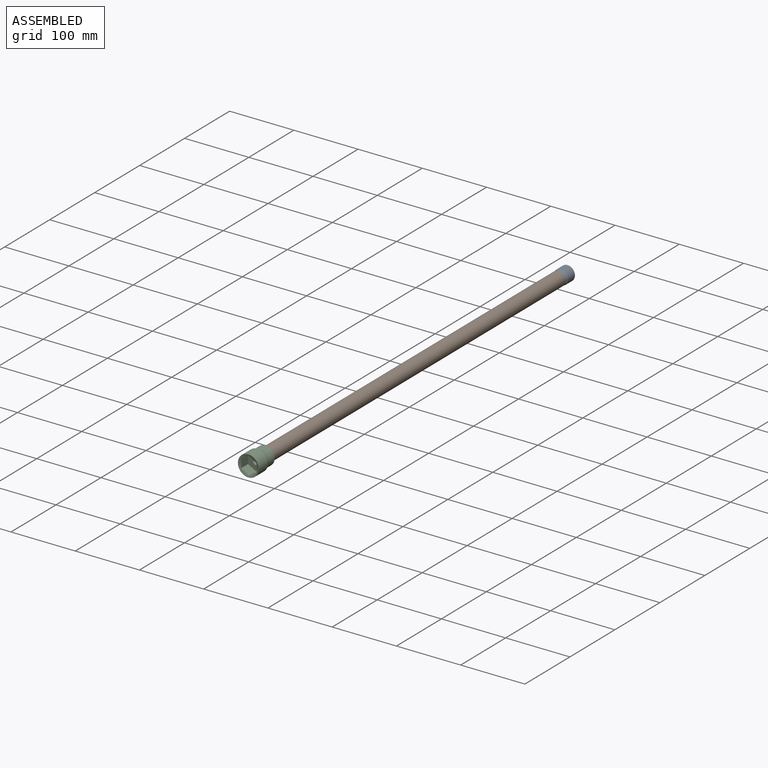
[diagram: assembled view]
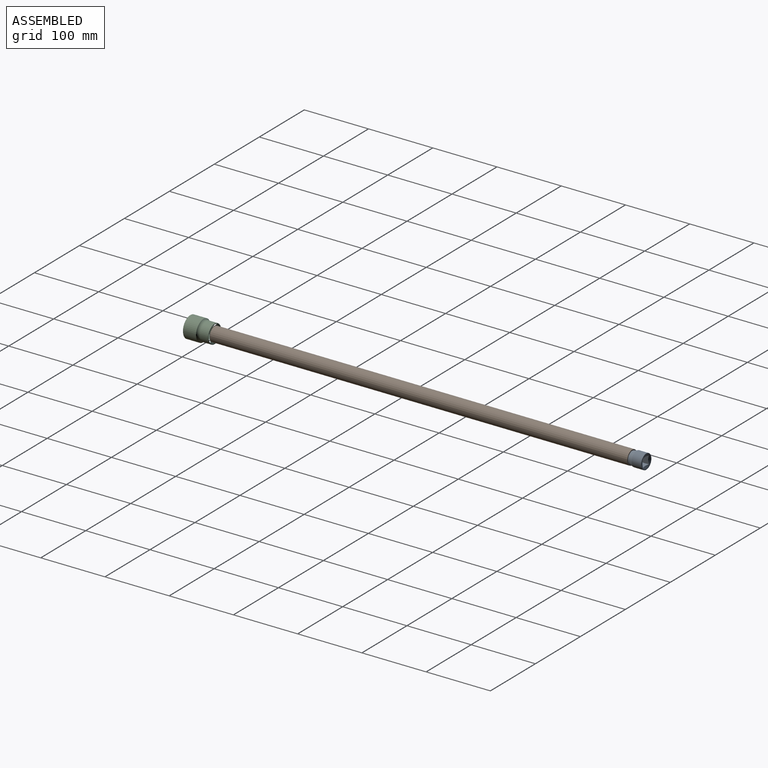
[diagram: assembled view, second angle]
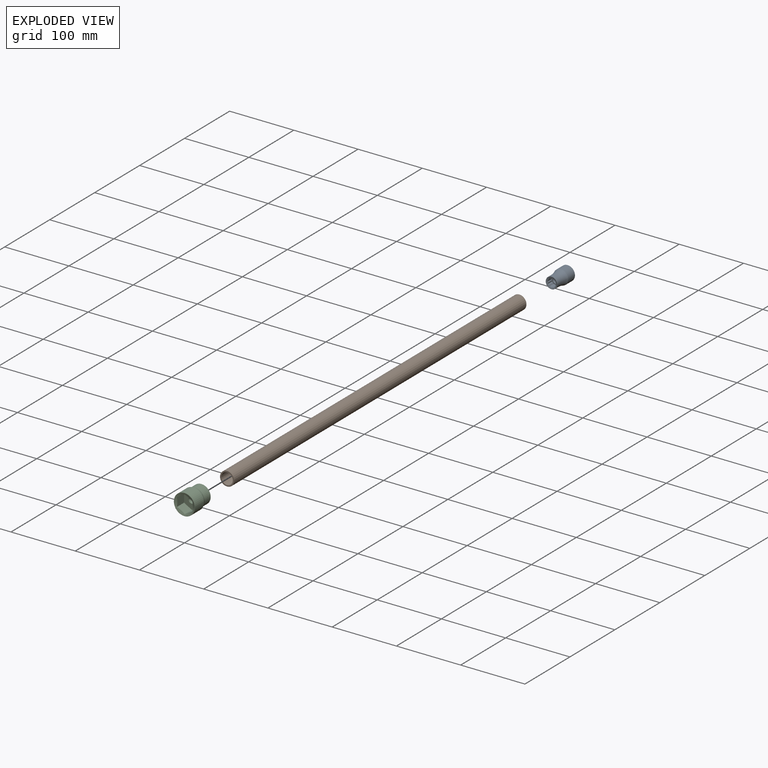
[diagram: exploded view]
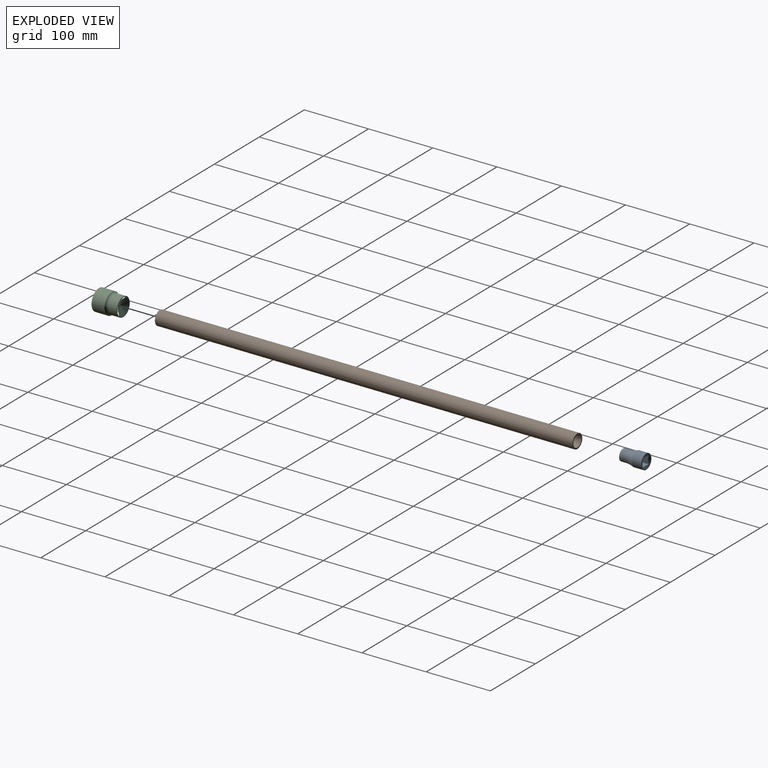
[diagram: exploded view, second angle]
ASSEMBLY  parts=3 mates=2
PART A: 38 faces, bbox 36.2x44.5x44.5 mm
  f0: plane 22.8x22.8mm, normal (1,0,0), area 68.5mm2, adj f30,f37
  f1: plane 13.89x12.7mm, normal (0,0,-1), area 168.5mm2, adj f2,f3,f34,f37
  f2: plane 13.89x12.7mm, normal (0,1,0), area 168.5mm2, adj f1,f4,f34,f37
  f3: plane 13.89x12.7mm, normal (0,-1,0), area 168.5mm2, adj f1,f4,f34,f37
  f4: plane 13.89x12.7mm, normal (0,0,1), area 168.5mm2, adj f2,f3,f34,f37
  f5: plane 17.8x17.8mm, normal (-1,0,0), area 27.2mm2, adj f32,f36
  f6: plane 9.12x1.76mm, normal (0,0.87,-0.5), area 16.4mm2, adj f17,f28,f33,f36
  f7: plane 9.12x1.76mm, normal (0,0.87,-0.5), area 16.4mm2, adj f9,f29,f33,f36
  f8: plane 9.12x1.76mm, normal (0,0.87,0.5), area 16.4mm2, adj f10,f27,f33,f36
  f9: plane 9.12x1.76mm, normal (0,0.87,0.5), area 16.4mm2, adj f7,f26,f33,f36
  f10: plane 9.12x2.01mm, normal (0,0,1), area 16.4mm2, adj f8,f25,f33,f36
  f11: plane 9.12x2.01mm, normal (0,0,1), area 16.4mm2, adj f12,f24,f33,f36
  f12: plane 9.12x1.76mm, normal (0,-0.87,0.5), area 16.4mm2, adj f11,f23,f33,f36
  f13: plane 9.12x1.76mm, normal (0,-0.87,0.5), area 16.4mm2, adj f14,f22,f33,f36
  f14: plane 9.12x1.76mm, normal (0,-0.87,-0.5), area 16.4mm2, adj f13,f21,f33,f36
  f15: plane 9.12x1.76mm, normal (0,-0.87,-0.5), area 16.4mm2, adj f16,f20,f33,f36
  f16: plane 9.12x2.01mm, normal (0,0,-1), area 16.4mm2, adj f15,f19,f33,f36
  f17: plane 9.12x2.01mm, normal (0,0,-1), area 16.4mm2, adj f6,f18,f33,f36
  f18: plane 9.12x1.76mm, normal (0,0.5,-0.87), area 16.4mm2, adj f17,f19,f33,f36
  f19: plane 9.12x1.76mm, normal (0,-0.5,-0.87), area 16.4mm2, adj f16,f18,f33,f36
  f20: plane 9.12x1.76mm, normal (0,-0.5,-0.87), area 16.4mm2, adj f15,f21,f33,f36
  f21: plane 9.12x2.01mm, normal (0,-1,0), area 16.4mm2, adj f14,f20,f33,f36
  f22: plane 9.12x2.01mm, normal (0,-1,0), area 16.4mm2, adj f13,f23,f33,f36
  f23: plane 9.12x1.76mm, normal (0,-0.5,0.87), area 16.4mm2, adj f12,f22,f33,f36
  f24: plane 9.12x1.76mm, normal (0,-0.5,0.87), area 16.4mm2, adj f11,f25,f33,f36
  f25: plane 9.12x1.76mm, normal (0,0.5,0.87), area 16.4mm2, adj f10,f24,f33,f36
  f26: plane 9.12x2.01mm, normal (0,1,0), area 16.4mm2, adj f9,f27,f33,f36
  f27: plane 9.12x1.76mm, normal (0,0.5,0.87), area 16.4mm2, adj f8,f26,f33,f36
  f28: plane 9.12x1.76mm, normal (0,0.5,-0.87), area 16.4mm2, adj f6,f29,f33,f36
  f29: plane 9.12x2.01mm, normal (0,1,0), area 16.4mm2, adj f7,f28,f33,f36
  f30: cylinder r=11.4mm len=22.8mm, axis (-1,0,0), area 1074.4mm2, adj f0,f31
  f31: torus R=48.9mm, axis (-1,0,0), area 869.8mm2, adj f30,f32
  f32: cylinder r=8.9mm len=17.8mm, axis (-1,0,0), area 395.9mm2, adj f5,f31
  f33: plane 13.86x13.86mm, normal (-1,0,0), area 61.3mm2, adj f6,f7,f8,f9,f10,f11,f12,f13
  f34: plane 12.7x12.7mm, normal (1,0,0), area 88.9mm2, adj f1,f2,f3,f4,f35
  f35: cylinder r=4.8mm len=12.1mm, axis (1,0,0), area 364.9mm2, adj f33,f34
  f36: cone r=8.4mm half-angle=70deg, axis (-1,0,0), area 91.4mm2, adj f5,f6,f7,f8,f9,f10,f11,f12
  f37: cone r=10.4mm half-angle=70deg, axis (1,0,0), area 190mm2, adj f0,f1,f2,f3,f4
PART B: 4 faces, bbox 22x650x22 mm
  f0: cylinder r=9mm len=650mm, axis (0,1,0), area 36756.6mm2, adj f2,f3
  f1: cylinder r=11mm len=650mm, axis (0,1,0), area 44924.8mm2, adj f2,f3
  f2: plane 22x22mm, normal (0,-1,0), area 125.7mm2, adj f0,f1
  f3: plane 22x22mm, normal (0,1,0), area 125.7mm2, adj f0,f1
PART C: 21 faces, bbox 38x44.1x44.1 mm
  f0: plane 28.7x28.7mm, normal (1,0,0), area 87mm2, adj f1,f20
  f1: cone r=13.35mm half-angle=70deg, axis (1,0,0), area 595.8mm2, adj f0,f2,f19
  f2: cone r=13.35mm half-angle=70deg, axis (1,0,0), area 171.6mm2, adj f1,f3,f17,f18,f19
  f3: plane 13.61x12.7mm, normal (0,1,0), area 165mm2, adj f2,f4,f18,f19
  f4: plane 12.7x12.7mm, normal (1,0,0), area 80.2mm2, adj f3,f5,f17,f18,f19
  f5: cylinder r=5.08mm len=10.16mm, axis (1,0,0), area 201.1mm2, adj f4,f6
  f6: plane 27.71x24mm, normal (-1,0,0), area 417.8mm2, adj f5,f7,f12,f13,f14,f15,f16
  f7: plane 15.77x12mm, normal (0,0.87,0.5), area 212.4mm2, adj f6,f8,f12,f16
  f8: cone r=15.85mm half-angle=70deg, axis (-1,0,0), area 309mm2, adj f7,f9,f12,f13,f14,f15,f16
  f9: plane 32.7x32.7mm, normal (-1,0,0), area 50.6mm2, adj f8,f10
  f10: cylinder r=16.35mm len=32.7mm, axis (-1,0,0), area 2095.7mm2, adj f9,f11
  f11: torus R=20.35mm, axis (-1,0,0), area 476.7mm2, adj f10,f20
  f12: plane 15.78x13.87mm, normal (0,0,1), area 212.4mm2, adj f6,f7,f8,f13
  f13: plane 15.77x12mm, normal (0,-0.87,0.5), area 212.4mm2, adj f6,f8,f12,f14
  f14: plane 15.77x12mm, normal (0,-0.87,-0.5), area 212.4mm2, adj f6,f8,f13,f15
  f15: plane 15.78x13.87mm, normal (0,0,-1), area 212.4mm2, adj f6,f8,f14,f16
  f16: plane 15.77x12mm, normal (0,0.87,-0.5), area 212.4mm2, adj f6,f7,f8,f15
  f17: plane 13.61x12.7mm, normal (0,-1,0), area 165mm2, adj f2,f4,f18,f19
  f18: plane 13.61x12.7mm, normal (0,0,-1), area 165mm2, adj f2,f3,f4,f17
  f19: plane 13.61x12.7mm, normal (0,0,1), area 165mm2, adj f1,f2,f3,f4,f17
  f20: cylinder r=14.35mm len=28.7mm, axis (-1,0,0), area 1183.7mm2, adj f0,f11
PLACE A rot(axis=(0.58,0.58,0.58),120deg) t=(-133.17,163.37,-105.9)mm
PLACE B t=(-133.17,177.52,-105.9)mm
PLACE C rot(axis=(-0.58,-0.58,0.58),120deg) t=(-133.17,-510.48,-105.9)mm
MATE fastened C.f1 <-> B.f1  axis (0,1,0) through (-133.17,-472.48,-105.9)mm
MATE fastened A.f30 <-> B.f1  axis (0,-1,0) through (-133.17,177.52,-105.9)mm
